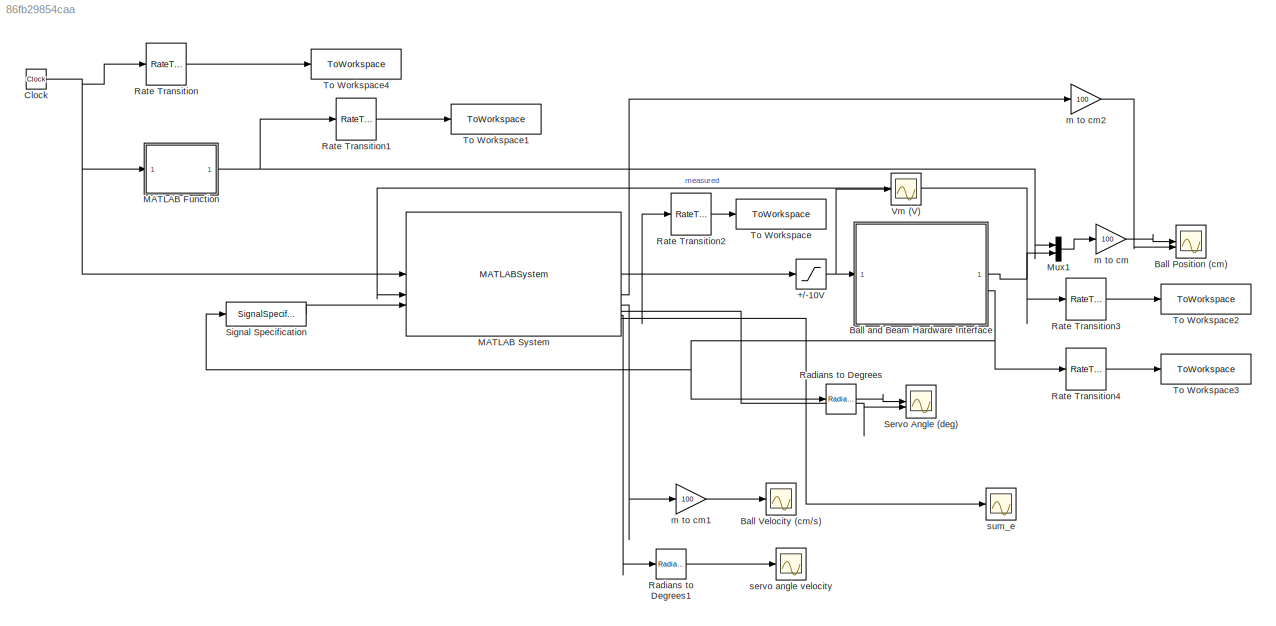
MODEL slx_86fb29854caa
KIND model
CONFIG AbsTol = 1e-6
CONFIG EnableMultiTasking = on
CONFIG FixedStep = 0.002
CONFIG MaxStep = auto
CONFIG MinStep = auto
CONFIG RelTol = 1e-3
CONFIG SampleTimeConstraint = Unconstrained
CONFIG SolverName = ode4
CONFIG StartTime = 0.0
CONFIG StopTime = 90
BLOCK [Saturate] +//-10V
  LowerLimit = -10
  UpperLimit = 10
BLOCK [Scope] Ball Position (cm)
  Floating = off
  NumInputPorts = 2
  ScopeSpecificationString = Simulink.scopes.TimeScopeBlockCfg('CurrentConfiguration', extmgr.ConfigurationSet(extmgr.Configuration('Core','General UI',true),extmgr.Configuration('Core','Source UI',true),extmgr.Configuration('Sources','WiredSimulink',true,'DataLoggingVariableName','data_x','DataLogging',true,'DataLoggingMaxPoints','12500','DataLoggingSaveFormat','StructureWithTime'),extmgr.Configuration('Visuals','Time Domain...<+1610ch>
BLOCK [Scope] Ball Velocity (cm//s)
  Floating = off
  NumInputPorts = 1
  ScopeSpecificationString = Simulink.scopes.TimeScopeBlockCfg('CurrentConfiguration', extmgr.ConfigurationSet(extmgr.Configuration('Core','General UI',true),extmgr.Configuration('Core','Source UI',true),extmgr.Configuration('Sources','WiredSimulink',true,'DataLoggingVariableName','ScopeData1'),extmgr.Configuration('Visuals','Time Domain',true,'SerializedDisplays',{struct('MinYLimReal','-80990093152832907549180134414715932112...<+2473ch>
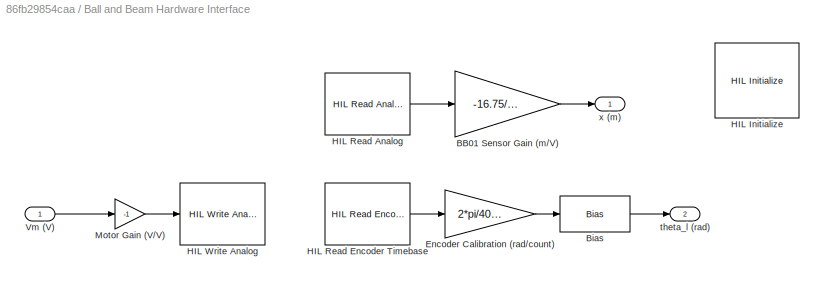
BLOCK [SubSystem] Ball and Beam Hardware Interface
BLOCK [Gain] Ball and Beam Hardware Interface/BB01 Sensor Gain (m//V)
  Gain = -16.75/10*0.0254
BLOCK [Bias] Ball and Beam Hardware Interface/Bias
  Bias = -56*pi/180
  SaturateOnIntegerOverflow = off
BLOCK [Gain] Ball and Beam Hardware Interface/Encoder Calibration (rad//count)
  Gain = 2*pi/4096
  OutDataTypeStr = Inherit: Same as input
  ParamDataTypeStr = Inherit: Same as input
  SaturateOnIntegerOverflow = on
BLOCK [Reference] Ball and Beam Hardware Interface/HIL Initialize  REF=quarc_library/Data Acquisition/Generic/Configuration/HIL Initialize
  AttributesFormatString = %<object_name> (%<board_type>-%<board_number>)
  SourceBlock = quarc_library/Data Acquisition/Generic/Configuration/HIL Initialize
  SourceProductName = QUARC Targets
  SourceType = HIL Initialize
  UserDataPersistent = on
BLOCK [Reference] Ball and Beam Hardware Interface/HIL Read Analog  REF=quarc_library/Data Acquisition/Generic/Immediate I//O/HIL Read Analog
  AttributesFormatString = (%<object_name>)
  SourceBlock = quarc_library/Data Acquisition/Generic/Immediate I//O/HIL Read Analog
  SourceProductName = QUARC Targets
  SourceType = HIL Read Analog
  UserDataPersistent = on
BLOCK [Reference] Ball and Beam Hardware Interface/HIL Read Encoder Timebase  REF=quarc_library/Data Acquisition/Generic/Timebases/HIL Read Encoder
Timebase
  AttributesFormatString = (%<object_name>)
  SourceBlock = quarc_library/Data Acquisition/Generic/Timebases/HIL Read Encoder\nTimebase
  SourceProductName = QUARC Targets
  SourceType = HIL Read Encoder Timebase
  UserDataPersistent = on
BLOCK [Reference] Ball and Beam Hardware Interface/HIL Write Analog  REF=quarc_library/Data Acquisition/Generic/Immediate I//O/HIL Write Analog
  AttributesFormatString = (%<object_name>)
  SourceBlock = quarc_library/Data Acquisition/Generic/Immediate I//O/HIL Write Analog
  SourceProductName = QUARC Targets
  SourceType = HIL Write Analog
  Tag = unassigned
  UserDataPersistent = on
BLOCK [Gain] Ball and Beam Hardware Interface/Motor Gain (V//V)
  Gain = -1
BLOCK [Inport] Ball and Beam Hardware Interface/Vm (V)
BLOCK [Outport] Ball and Beam Hardware Interface/theta_l (rad)
  Port = 2
BLOCK [Outport] Ball and Beam Hardware Interface/x (m)
BLOCK [Clock] Clock
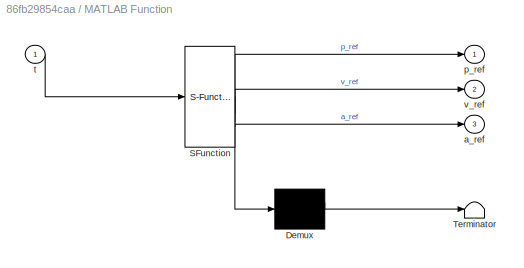
BLOCK [SubSystem] MATLAB Function
  ErrorFcn = Stateflow.Translate.translate
  PermitHierarchicalResolution = ExplicitOnly
  SFBlockType = MATLAB Function
  TreatAsAtomicUnit = on
BLOCK [Demux] MATLAB Function/ Demux 
  Outputs = 1
BLOCK [S-Function] MATLAB Function/ SFunction 
  EnableBusSupport = on
  FunctionName = sf_sfun
  PortCounts = [1 4]
  SFcnIsStateOwnerBlock = off
  SFunctionDeploymentMode = off
  Tag = Stateflow S-Function 2
BLOCK [Terminator] MATLAB Function/ Terminator 
BLOCK [Outport] MATLAB Function/a_ref
  Port = 3
BLOCK [Outport] MATLAB Function/p_ref
BLOCK [Inport] MATLAB Function/t
BLOCK [Outport] MATLAB Function/v_ref
  Port = 2
BLOCK [MATLABSystem] MATLAB System
  MaskDisplay = disp('studentControllerInterface');\nport_label('input',1,'t');\nport_label('input',2,'p_ball');\nport_label('input',3,'theta');\nport_label('output',1,'V_servo');\nport_label('output',2,'xm');\nport_label('output',3,'xm_dot');\nport_label('output',4,'theta');\nport_label('output',5,'theta_dot');\nport_label('output',6,'sum_e');
  MaskType = studentControllerInterface
  SimulateUsing = Code generation
  System = studentControllerInterface
BLOCK [Mux] Mux1
  DisplayOption = bar
  Inputs = 2
BLOCK [Reference] Radians to Degrees  REF=simulink_extras/Transformations/Radians
to Degrees
  SourceBlock = simulink_extras/Transformations/Radians\nto Degrees
  SourceType = RadiansToDegrees
BLOCK [Reference] Radians to Degrees1  REF=simulink_extras/Transformations/Radians
to Degrees
  SourceBlock = simulink_extras/Transformations/Radians\nto Degrees
  SourceType = RadiansToDegrees
BLOCK [RateTransition] Rate Transition
  OutPortSampleTimeOpt = Inherit
BLOCK [RateTransition] Rate Transition1
  OutPortSampleTimeOpt = Inherit
BLOCK [RateTransition] Rate Transition2
  OutPortSampleTimeOpt = Inherit
BLOCK [RateTransition] Rate Transition3
  OutPortSampleTimeOpt = Inherit
BLOCK [RateTransition] Rate Transition4
  OutPortSampleTimeOpt = Inherit
BLOCK [Scope] Servo Angle (deg)
  Floating = off
  NumInputPorts = 2
  ScopeSpecificationString = Simulink.scopes.TimeScopeBlockCfg('CurrentConfiguration', extmgr.ConfigurationSet(extmgr.Configuration('Core','General UI',true),extmgr.Configuration('Core','Source UI',true),extmgr.Configuration('Sources','WiredSimulink',true,'DataLoggingVariableName','data_theta_l','DataLogging',true,'DataLoggingLimitDataPoints',true,'DataLoggingMaxPoints','90000','DataLoggingSaveFormat','StructureWithTime'),ext...<+1650ch>
BLOCK [SignalSpecification] Signal Specification
  NameLocation = top
  OutDataTypeStr = double
BLOCK [ToWorkspace] To Workspace
  FixptAsFi = on
  MaxDataPoints = inf
  SampleTime = 0.01
  Save2DSignal = 2-D array (concatenate along first dimension)
  VariableName = us
BLOCK [ToWorkspace] To Workspace1
  FixptAsFi = on
  MaxDataPoints = inf
  SampleTime = 0.01
  Save2DSignal = 2-D array (concatenate along first dimension)
  VariableName = ref_ps
BLOCK [ToWorkspace] To Workspace2
  FixptAsFi = on
  MaxDataPoints = inf
  SampleTime = 0.01
  Save2DSignal = 2-D array (concatenate along first dimension)
  VariableName = ps
BLOCK [ToWorkspace] To Workspace3
  FixptAsFi = on
  MaxDataPoints = inf
  SampleTime = 0.01
  Save2DSignal = 2-D array (concatenate along first dimension)
  VariableName = thetas
BLOCK [ToWorkspace] To Workspace4
  FixptAsFi = on
  MaxDataPoints = inf
  SampleTime = 0.01
  Save2DSignal = 2-D array (concatenate along first dimension)
  VariableName = ts
BLOCK [Scope] Vm (V)
  Floating = off
  NumInputPorts = 1
  ScopeSpecificationString = Simulink.scopes.TimeScopeBlockCfg('CurrentConfiguration', extmgr.ConfigurationSet(extmgr.Configuration('Core','General UI',true),extmgr.Configuration('Core','Source UI',true),extmgr.Configuration('Sources','WiredSimulink',true,'DataLogging',true,'DataLoggingVariableName','data_vm','DataLoggingLimitDataPoints',true,'DataLoggingMaxPoints','50000','DataLoggingSaveFormat','StructureWithTime'),extmgr.C...<+1634ch>
BLOCK [Gain] m to cm
  Gain = 100
BLOCK [Gain] m to cm1
  Gain = 100
BLOCK [Gain] m to cm2
  Gain = 100
BLOCK [Scope] servo angle velocity
  Floating = off
  NumInputPorts = 1
  ScopeSpecificationString = Simulink.scopes.TimeScopeBlockCfg('CurrentConfiguration', extmgr.ConfigurationSet(extmgr.Configuration('Core','General UI',true),extmgr.Configuration('Core','Source UI',true),extmgr.Configuration('Sources','WiredSimulink',true,'DataLoggingVariableName','ScopeData2'),extmgr.Configuration('Visuals','Time Domain',true,'SerializedDisplays',{struct('MinYLimReal','-18597847928152561772161160785671882913...<+2156ch>
BLOCK [Scope] sum_e
  Floating = off
  NumInputPorts = 1
  ScopeSpecificationString = Simulink.scopes.TimeScopeBlockCfg('CurrentConfiguration', extmgr.ConfigurationSet(extmgr.Configuration('Core','General UI',true),extmgr.Configuration('Core','Source UI',true),extmgr.Configuration('Sources','WiredSimulink',true,'DataLoggingVariableName','ScopeData1'),extmgr.Configuration('Visuals','Time Domain',true,'SerializedDisplays',{struct('MinYLimReal','-1.25','MaxYLimReal','1.25','YLabelReal...<+1686ch>
NET +//-10V:1 -> Ball and Beam Hardware Interface:1, Vm (V):1
LINE Ball and Beam Hardware Interface/BB01 Sensor Gain (m//V):1 -> Ball and Beam Hardware Interface/x (m):1
LINE Ball and Beam Hardware Interface/Bias:1 -> Ball and Beam Hardware Interface/theta_l (rad):1
LINE Ball and Beam Hardware Interface/Encoder Calibration (rad//count):1 -> Ball and Beam Hardware Interface/Bias:1
LINE Ball and Beam Hardware Interface/HIL Read Analog:1 -> Ball and Beam Hardware Interface/BB01 Sensor Gain (m//V):1
LINE Ball and Beam Hardware Interface/HIL Read Encoder Timebase:1 -> Ball and Beam Hardware Interface/Encoder Calibration (rad//count):1
LINE Ball and Beam Hardware Interface/Motor Gain (V//V):1 -> Ball and Beam Hardware Interface/HIL Write Analog:1
LINE Ball and Beam Hardware Interface/Vm (V):1 -> Ball and Beam Hardware Interface/Motor Gain (V//V):1
NET Ball and Beam Hardware Interface:1 -> MATLAB System:2, Mux1:2, Rate Transition3:1
NET Ball and Beam Hardware Interface:2 -> Radians to Degrees:1, Rate Transition4:1, Signal Specification:1
NET Clock:1 -> MATLAB Function:1, MATLAB System:1, Rate Transition:1
NET MATLAB Function:1 -> Mux1:1, Rate Transition1:1
NET MATLAB System:1 -> +//-10V:1, Rate Transition2:1
LINE MATLAB System:2 -> m to cm2:1
LINE MATLAB System:3 -> m to cm1:1
LINE MATLAB System:4 -> Servo Angle (deg):2
LINE MATLAB System:5 -> Radians to Degrees1:1
LINE MATLAB System:6 -> sum_e:1
LINE Mux1:1 -> m to cm:1
LINE Radians to Degrees1:1 -> servo angle velocity:1
LINE Radians to Degrees:1 -> Servo Angle (deg):1
LINE Rate Transition1:1 -> To Workspace1:1
LINE Rate Transition2:1 -> To Workspace:1
LINE Rate Transition3:1 -> To Workspace2:1
LINE Rate Transition4:1 -> To Workspace3:1
LINE Rate Transition:1 -> To Workspace4:1
LINE Signal Specification:1 -> MATLAB System:3
LINE m to cm1:1 -> Ball Velocity (cm//s):1
LINE m to cm2:1 -> Ball Position (cm):2
LINE m to cm:1 -> Ball Position (cm):1
note: NET lines group one-source signal fan-out (src -> all destinations, sorted); 1:1 wires keep LINE
CHART MATLAB Function states=1 transitions=1
  STATE_LABEL 'eML_blk_kernel()'
  STATE_LABEL 'SCRIPT:\nfunction [p_ref, v_ref, a_ref] = fcn(t)\n\n[p_ref, v_ref, a_ref] = get_ref_traj(t);'
CHART  states=0 transitions=0
